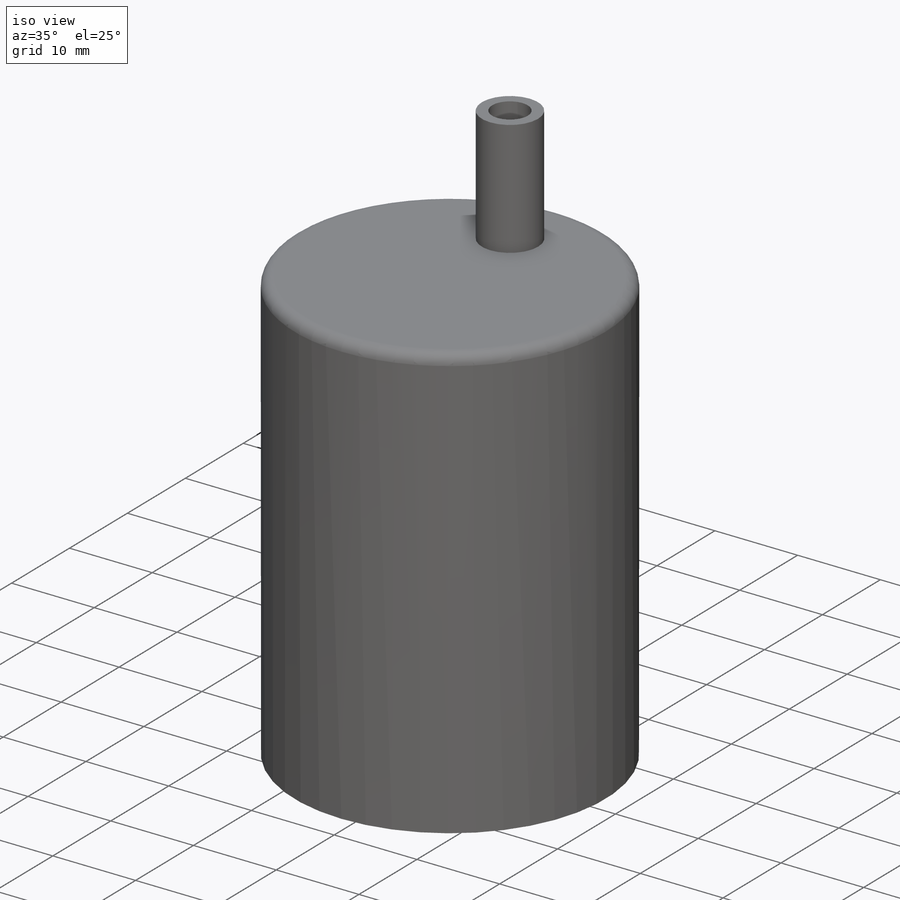
[diagram: iso view]
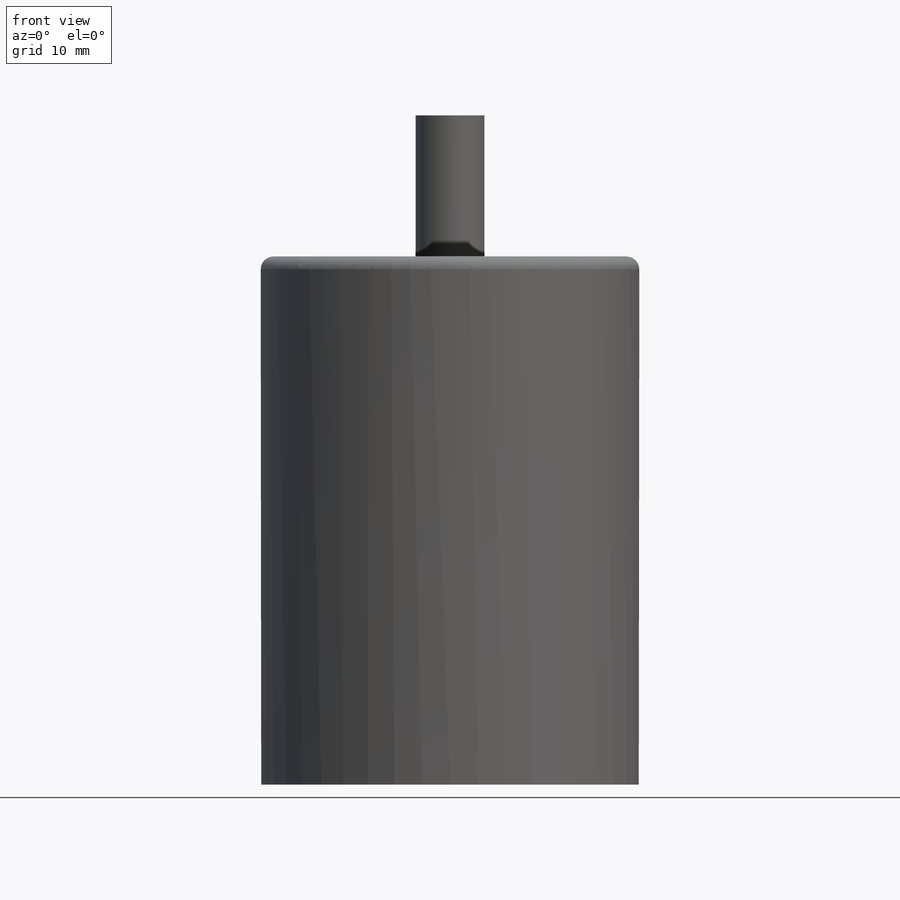
[diagram: front view]
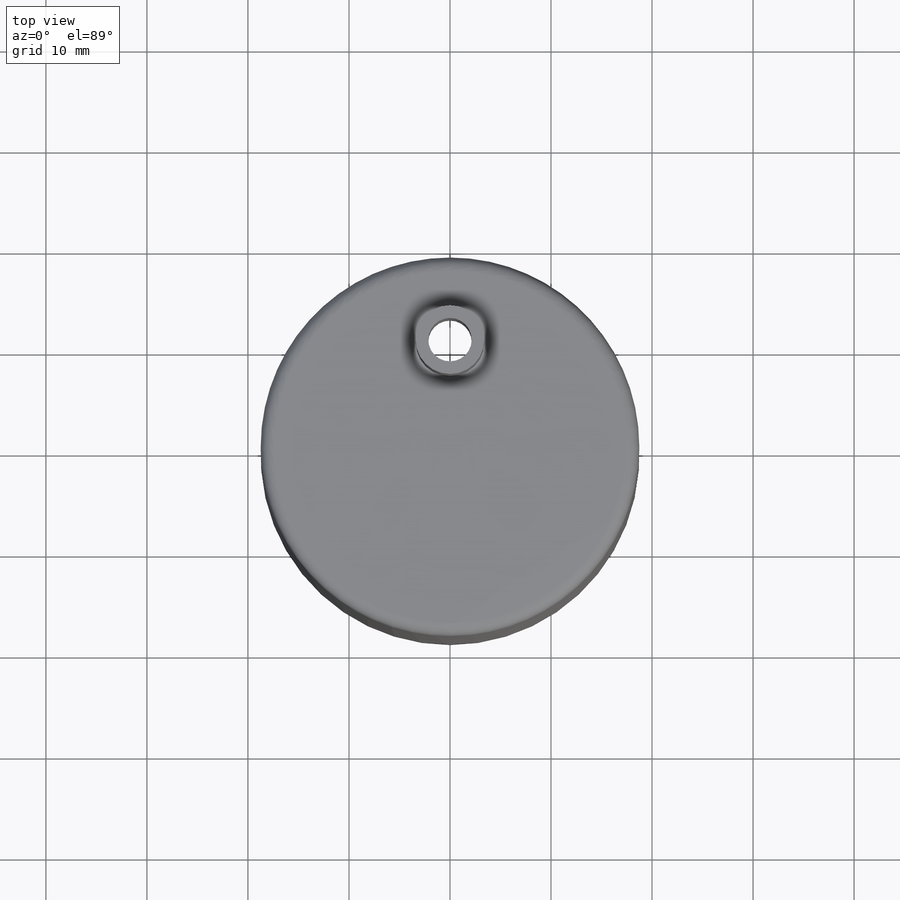
[diagram: top view]
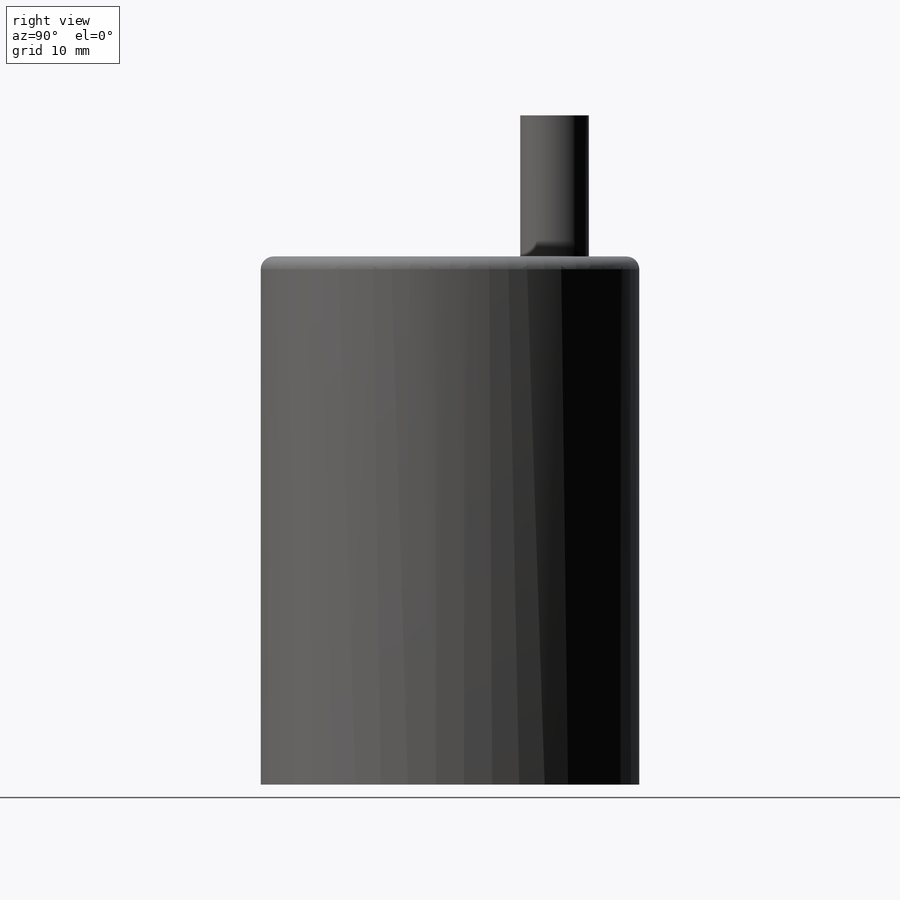
[diagram: right view]
SOLIDWORKS PART (.sldprt)
format: sldprt  version: not decoded by parser v0  size: 316,928 bytes
history: native  units: mm
features: sketch x15, extrude x8, cut_extrude x7, fillet x2, material x1 (+13 scaffold rows collapsed)
feature tree (46):
  scaffold x13  (default folders/planes/origin — collapsed)
  material  "Material <not specified>"
  sketch  "Sketch1"  dims[c1.D1=39.7mm c1.D2=~36.91408mm c1.D3=25.0mm c2.D2=1.07mm]
  extrude  "Boss-Extrude3"  Depth=7.95mm
  sketch  "Sketch2"
  extrude  "Boss-Extrude5"  Depth=1.5mm
  sketch  "Sketch4"  dims[D1=~12.315455mm]
  extrude  "Boss-Extrude6"  Depth=16.31mm
  sketch  "Sketch5"  dims[D1=1.5mm]
  cut_extrude  "Cut-Extrude2"  Depth=16.31mm
  sketch  "Sketch6"
  cut_extrude  "Cut-Extrude3"  Depth=14.81mm
  sketch  "Sketch12"  dims[D1=1.25mm]
  extrude  "Boss-Extrude8"  Depth=24.97mm
  cut_extrude  "Cut-Extrude5"  [1 undecoded]
  sketch  "Sketch5<6>"  dims[D1=24.97mm]
  sketch  "Sketch14"
  cut_extrude  "Cut-Extrude6"  [1 undecoded]
  sketch  "Sketch17"
  cut_extrude  "Cut-Extrude7"  Depth=16.588mm
  sketch  "Sketch18"  dims[c1.D1=~4.669884mm c1.D2=~6.93812mm c2.D1=0.0mm c2.D2=0.0mm]
  extrude  "Boss-Extrude10"  Depth=14mm
  sketch  "Sketch19"  dims[D1=0.0mm]
  cut_extrude  "Cut-Extrude8"  Depth=14mm
  sketch  "Sketch20"  dims[D1=0.0381mm D2=1.2mm]
  extrude  "Boss-Extrude11"  Depth=50.8mm
  sketch  "Sketch21"
  extrude  "Boss-Extrude12"  Depth=1.5mm
  sketch  "Sketch22"
  extrude  "Boss-Extrude13"  Depth=13.97mm
  sketch  "Sketch23"
  cut_extrude  "Cut-Extrude9"  Depth=30.456mm
  fillet  "Fillet1"  Radius=1.27mm
  fillet  "Fillet2"  Radius=1.27mm
decode coverage: 23 of 32 modeling features carry decoded parameters
note: ~ marks probable driven/reference dimensions
note: 2 parameter values undecoded
note: suppression state not decoded; provenance and decode notes live in map.json
